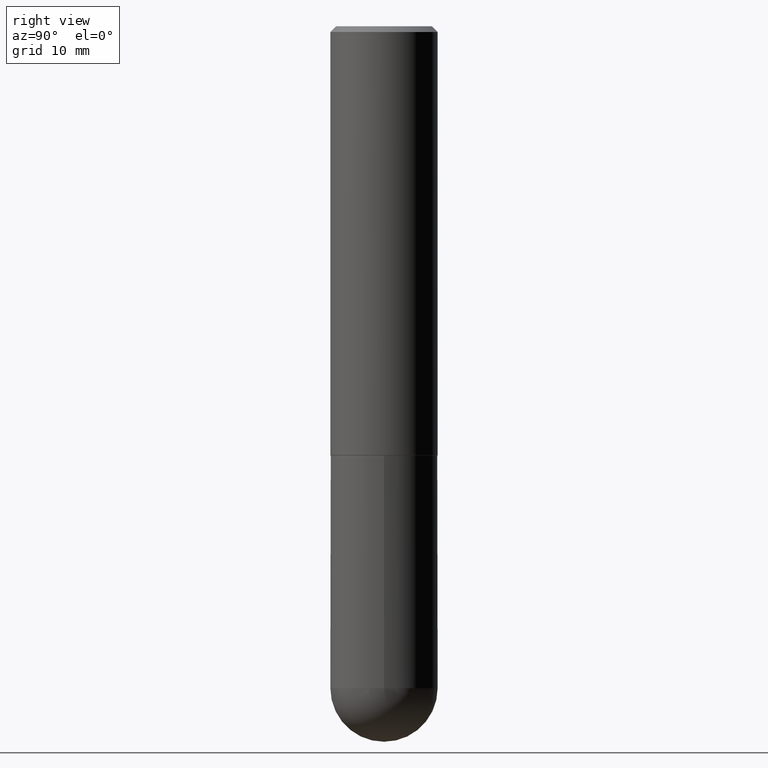
[diagram: clean part render]
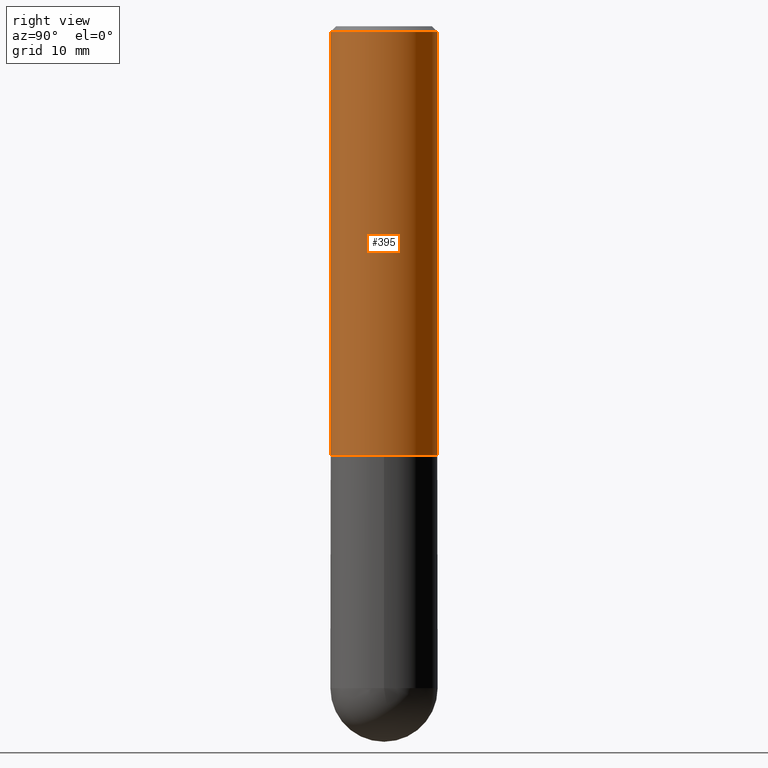
[diagram: same view with one face highlighted and labeled with its STEP entity id]
A machine part, right view. The second image highlights one B-rep face of the part: STEP entity #395.
In plain terms, the highlighted cylindrical surface (partial cylindrical patch) has radius 4.7625 mm, axis along (-0, 0, 1).
Its self-contained STEP definition (entity closure, byte-faithful):
#10 = CARTESIAN_POINT ( 'NONE',  ( 4.890049005694167439E-31, -6.984235213022855028E-17, -0.02000000000000004205 ) ) ;
#31 = ORIENTED_EDGE ( 'NONE', *, *, #122, .F. ) ;
#39 = ORIENTED_EDGE ( 'NONE', *, *, #293, .F. ) ;
#46 = CARTESIAN_POINT ( 'NONE',  ( 1.332267629550188243E-15, 0.1875000000000000833, -6.547720512208916374E-16 ) ) ;
#50 = AXIS2_PLACEMENT_3D ( 'NONE', #342, #82, #106 ) ;
#65 = VERTEX_POINT ( 'NONE', #328 ) ;
#74 = VECTOR ( 'NONE', #370, 39.37007874015748143 ) ;
#75 = CARTESIAN_POINT ( 'NONE',  ( -1.309305502066139509E-15, -0.1875000000000054123, -1.498999999999999444 ) ) ;
#82 = DIRECTION ( 'NONE',  ( -2.445024502847078342E-29, 3.492117606511420488E-15, 1.000000000000000000 ) ) ;
#86 = AXIS2_PLACEMENT_3D ( 'NONE', #403, #340, #285 ) ;
#90 = CARTESIAN_POINT ( 'NONE',  ( -1.286343374582161379E-15, -0.1875000000000000555, -0.01999999999999938979 ) ) ;
#91 = ORIENTED_EDGE ( 'NONE', *, *, #361, .T. ) ;
#94 = EDGE_CURVE ( 'NONE', #65, #157, #281, .T. ) ;
#106 = DIRECTION ( 'NONE',  ( -6.982962677686265922E-15, -1.000000000000000000, 2.913971193241877611E-15 ) ) ;
#108 = CARTESIAN_POINT ( 'NONE',  ( -1.309305502066175600E-15, -0.1875000000000000833, 6.547720512208916374E-16 ) ) ;
#109 = CIRCLE ( 'NONE', #174, 0.1874999999999999722 ) ;
#122 = EDGE_CURVE ( 'NONE', #364, #294, #248, .T. ) ;
#126 = CIRCLE ( 'NONE', #50, 0.1875000000000001943 ) ;
#150 = CYLINDRICAL_SURFACE ( 'NONE', #86, 0.1875000000000000833 ) ;
#157 = VERTEX_POINT ( 'NONE', #190 ) ;
#159 = EDGE_LOOP ( 'NONE', ( #91, #266, #39, #31 ) ) ;
#174 = AXIS2_PLACEMENT_3D ( 'NONE', #10, #363, #331 ) ;
#182 = DIRECTION ( 'NONE',  ( -2.445024502847078622E-29, 3.492117606511420488E-15, 1.000000000000000000 ) ) ;
#190 = CARTESIAN_POINT ( 'NONE',  ( 1.309305502066175205E-15, 0.1874999999999999167, -0.02000000000000069431 ) ) ;
#248 = LINE ( 'NONE', #108, #74 ) ;
#266 = ORIENTED_EDGE ( 'NONE', *, *, #94, .T. ) ;
#269 = VECTOR ( 'NONE', #182, 39.37007874015748143 ) ;
#281 = LINE ( 'NONE', #46, #269 ) ;
#285 = DIRECTION ( 'NONE',  ( -6.982962677686266711E-15, -1.000000000000000000, 3.492117606511420488E-15 ) ) ;
#293 = EDGE_CURVE ( 'NONE', #294, #157, #109, .T. ) ;
#294 = VERTEX_POINT ( 'NONE', #90 ) ;
#328 = CARTESIAN_POINT ( 'NONE',  ( 1.332267629550206781E-15, 0.1874999999999949485, -1.499000000000000554 ) ) ;
#331 = DIRECTION ( 'NONE',  ( -6.982962677686266711E-15, -1.000000000000000000, 3.483106191921935949E-15 ) ) ;
#340 = DIRECTION ( 'NONE',  ( -2.445024502847078342E-29, 3.492117606511420488E-15, 1.000000000000000000 ) ) ;
#342 = CARTESIAN_POINT ( 'NONE',  ( 3.665091729767770876E-29, -5.234684292160619130E-15, -1.499000000000000110 ) ) ;
#361 = EDGE_CURVE ( 'NONE', #364, #65, #126, .T. ) ;
#363 = DIRECTION ( 'NONE',  ( -2.445024502847078342E-29, 3.492117606511420488E-15, 1.000000000000000000 ) ) ;
#364 = VERTEX_POINT ( 'NONE', #75 ) ;
#370 = DIRECTION ( 'NONE',  ( -2.445024502847078622E-29, 3.492117606511420488E-15, 1.000000000000000000 ) ) ;
#377 = FACE_OUTER_BOUND ( 'NONE', #159, .T. ) ;
#395 = ADVANCED_FACE ( 'NONE', ( #377 ), #150, .T. ) ;
#403 = CARTESIAN_POINT ( 'NONE',  ( 0.000000000000000000, 0.000000000000000000, 0.000000000000000000 ) ) ;